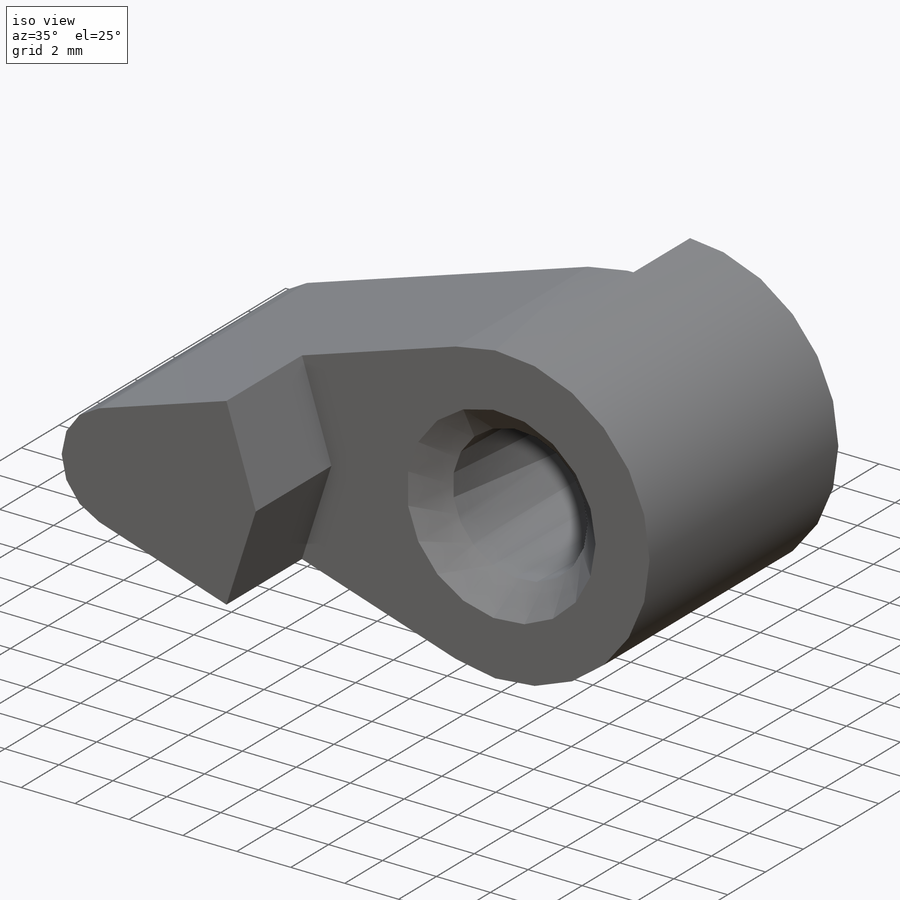
[diagram: iso view]
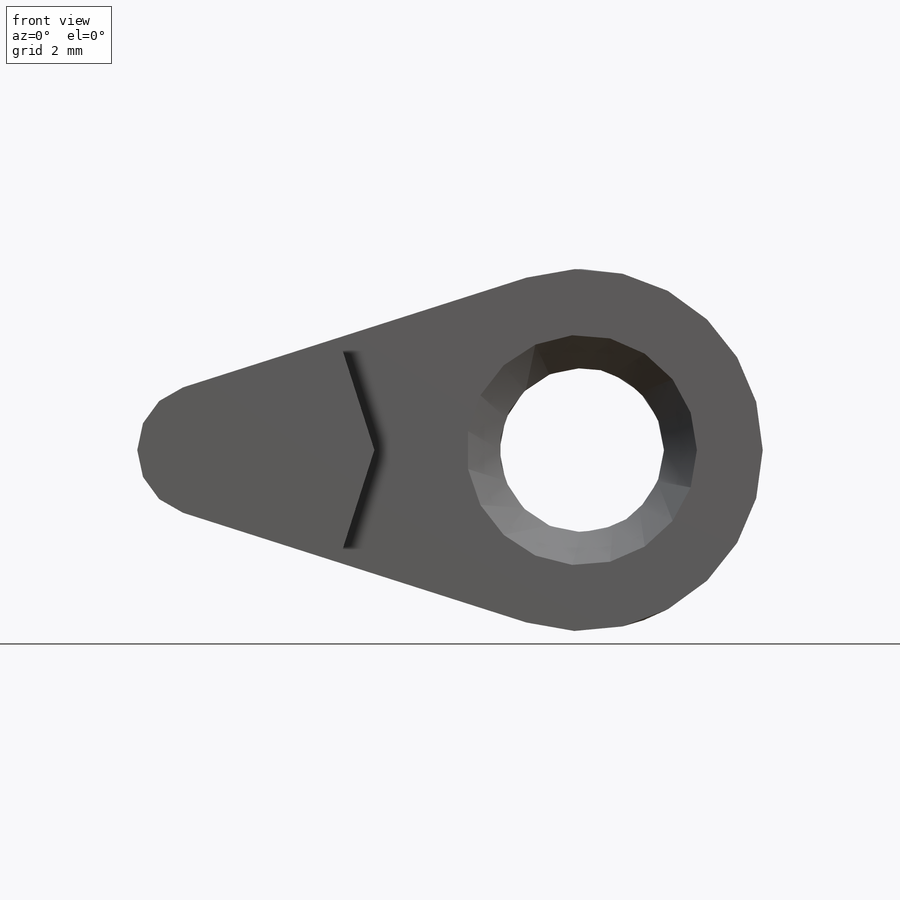
[diagram: front view]
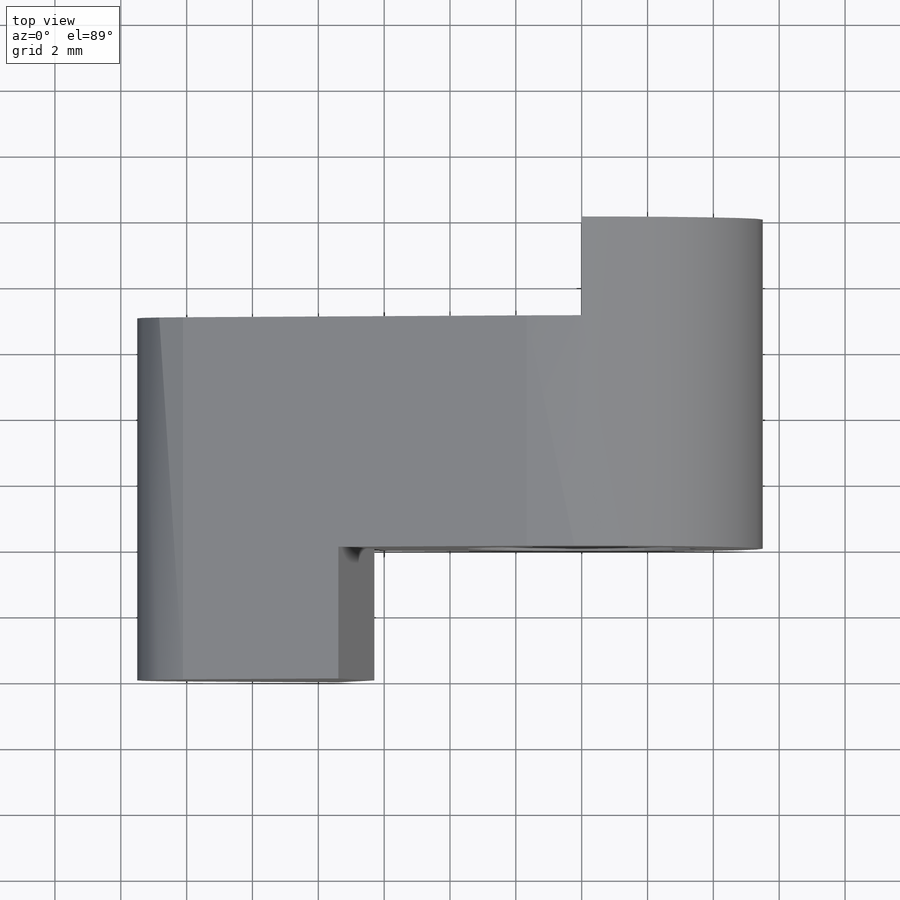
[diagram: top view]
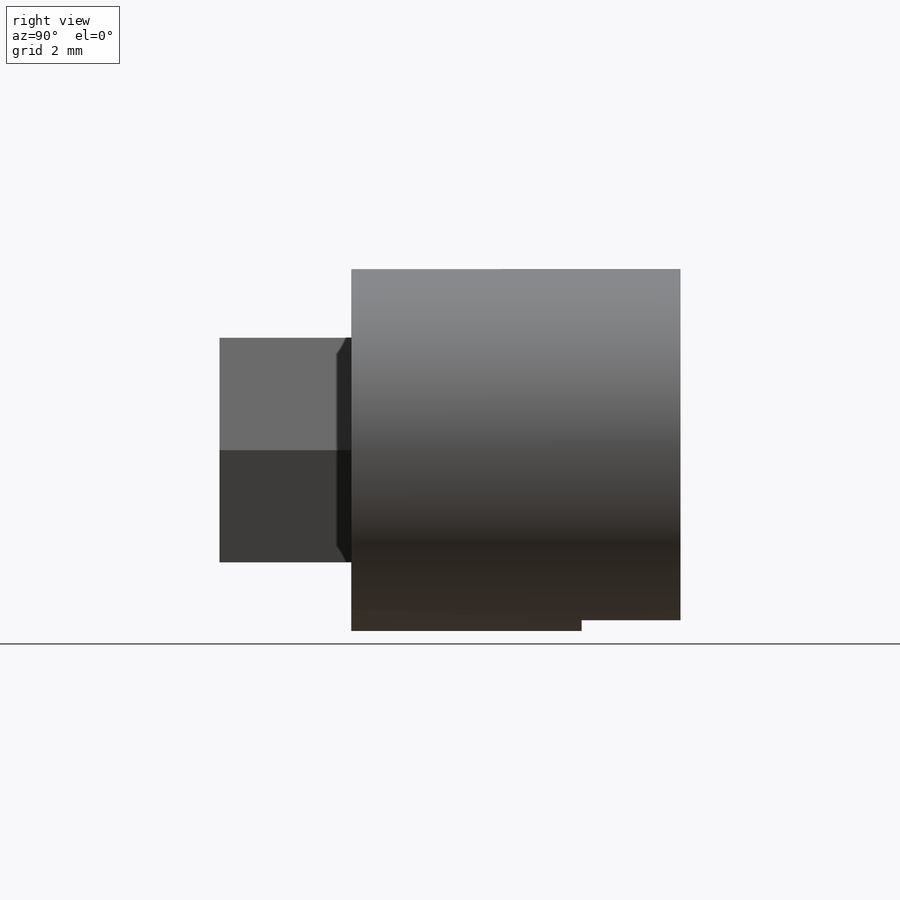
[diagram: right view]
SOLIDWORKS PART (.sldprt)
format: sldprt  version: not decoded by parser v0  size: 217,600 bytes
history: native  units: mm
features: plane x3, sketch x3, cut_extrude x2, material x1, extrude x1, chamfer x1 (+13 scaffold rows collapsed)
feature tree (24):
  scaffold x13  (default folders/planes/origin — collapsed)
  material  "Alliage 7079"
  plane  "Face"
  plane  "Dessus"
  plane  "Droite"
  sketch  "Esquisse1"  dims[c1.D1=11.0mm c1.D3=5.0mm c1.D4=2.0mm c1.D2=13.5mm c2.D3=5.5mm c2.D2=13.5mm c2.D5=~8.590909mm c3.D2=11.5mm c3.D5=14.0mm]
  extrude  "Extrusion1"  Depth=14mm
  sketch  "Esquisse2"  dims[c1.D3=~8.71614mm c1.D1=11.0mm c1.D2=11.0mm c2.D1=~7.364589mm c2.D2=6.0mm c3.D1=6.0mm c3.D3=6.0mm c3.D2=~8.317902mm c4.D1=6.0mm]
  cut_extrude  "Enlèv. mat.-Extru.1"  Depth=4mm
  sketch  "Esquisse4"  dims[c1.D1=5.0mm c1.D2=2.0mm c1.D5=5.5mm c1.D6=2.0mm c2.D5=2.0mm c2.D3=11.5mm c2.D4=~1.132353mm c3.D4=8.0deg c4.D4=~10.940927mm c5.D4=10.0deg c5.D5=~13.349052mm]
  cut_extrude  "Enlèv. mat.-Extru.2"  Depth=3mm
  chamfer  "Chanfrein1"  Distance=1mm Angle=45deg
decode coverage: 7 of 7 modeling features carry decoded parameters
note: ~ marks probable driven/reference dimensions
note: suppression state not decoded; provenance and decode notes live in map.json
